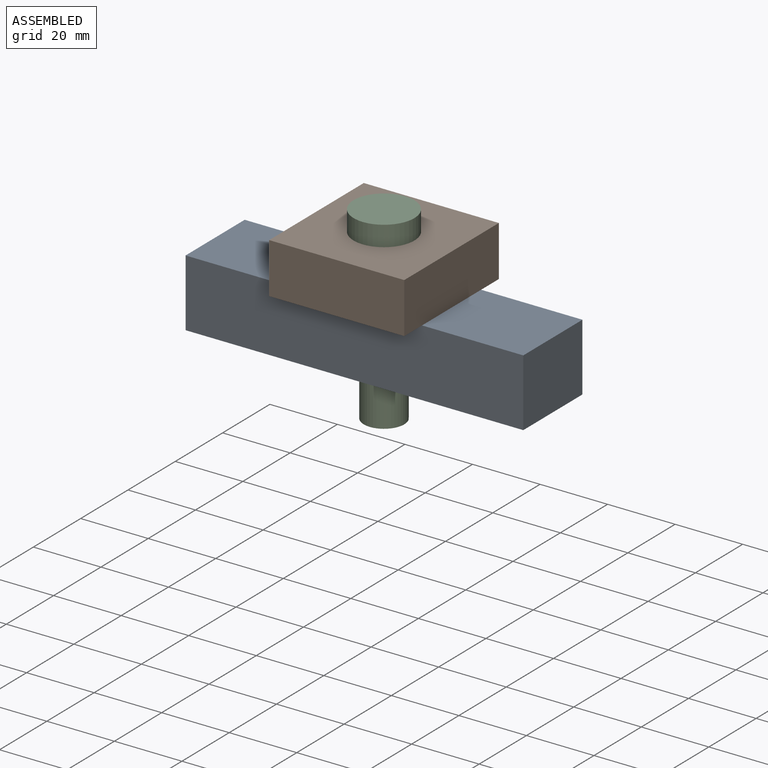
[diagram: assembled view]
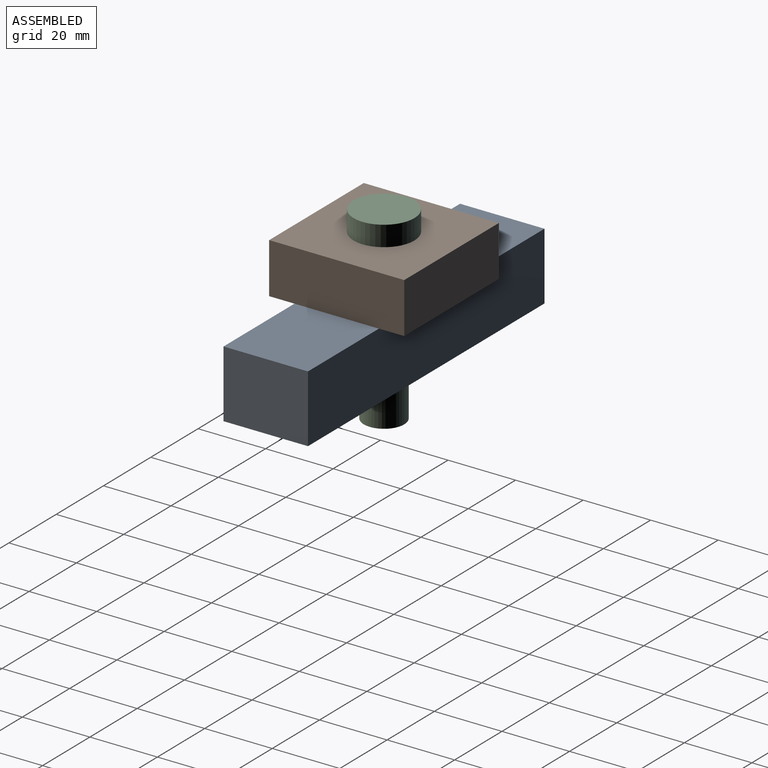
[diagram: assembled view, second angle]
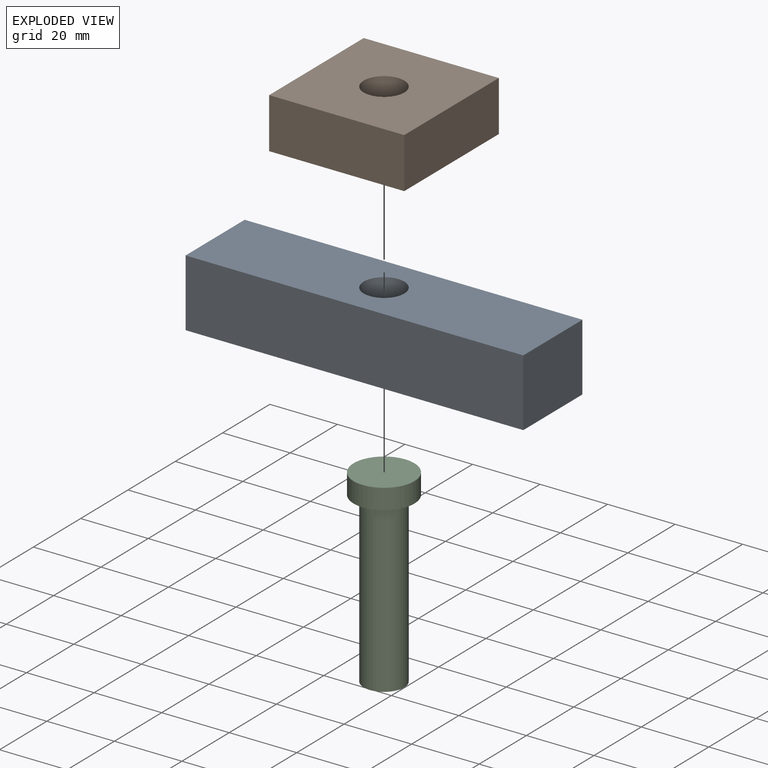
[diagram: exploded view]
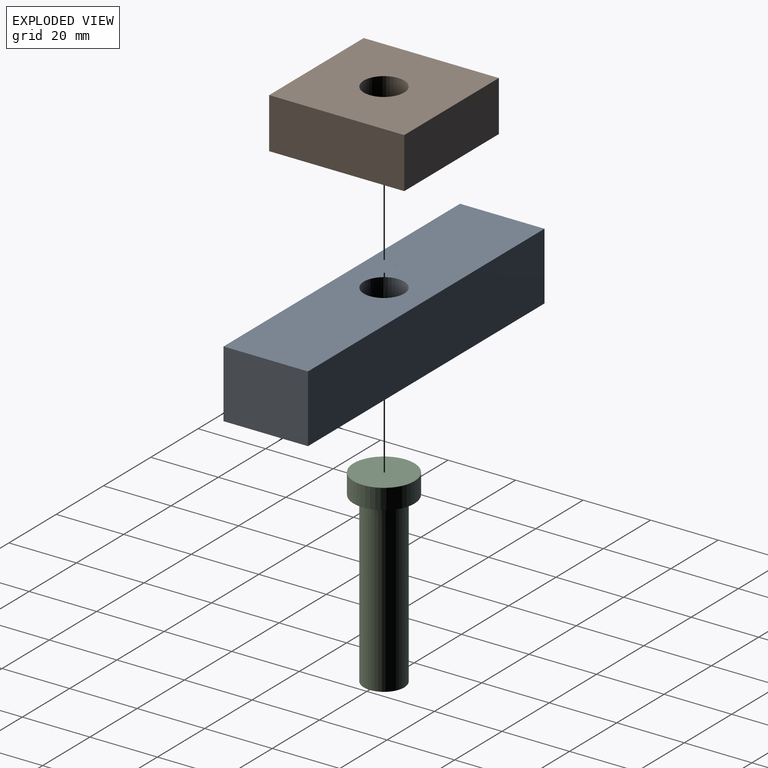
[diagram: exploded view, second angle]
ASSEMBLY  parts=3 mates=2
PART A: 7 faces, bbox 100x25x20 mm
  f0: plane 25x20mm, normal (1,0,0), area 500mm2, adj f1,f3,f4,f5
  f1: plane 100x20mm, normal (0,1,0), area 2000mm2, adj f0,f2,f4,f5
  f2: plane 25x20mm, normal (-1,0,0), area 500mm2, adj f1,f3,f4,f5
  f3: plane 100x20mm, normal (0,-1,0), area 2000mm2, adj f0,f2,f4,f5
  f4: plane 100x25mm, normal (0,0,1), area 2386.9mm2, adj f0,f1,f2,f3,f6
  f5: plane 100x25mm, normal (0,0,-1), area 2386.9mm2, adj f0,f1,f2,f3,f6
  f6: cylinder r=6mm len=20mm, axis (0,0,1), area 754mm2, adj f4,f5
PART B: 7 faces, bbox 40x40x15 mm
  f0: plane 40x15mm, normal (1,0,0), area 600mm2, adj f1,f3,f4,f5
  f1: plane 40x15mm, normal (0,1,0), area 600mm2, adj f0,f2,f4,f5
  f2: plane 40x15mm, normal (-1,0,0), area 600mm2, adj f1,f3,f4,f5
  f3: plane 40x15mm, normal (0,-1,0), area 600mm2, adj f0,f2,f4,f5
  f4: plane 40x40mm, normal (0,0,1), area 1486.9mm2, adj f0,f1,f2,f3,f6
  f5: plane 40x40mm, normal (0,0,-1), area 1486.9mm2, adj f0,f1,f2,f3,f6
  f6: cylinder r=6mm len=15mm, axis (0,0,1), area 565.5mm2, adj f4,f5
PART C: 5 faces, bbox 18x18x56 mm
  f0: cylinder r=6mm len=50mm, axis (0,0,-1), area 1885mm2, adj f1,f4
  f1: plane 12x12mm, normal (0,0,-1), area 113.1mm2, adj f0
  f2: cylinder r=9mm len=18mm, axis (0,0,-1), area 339.3mm2, adj f3,f4
  f3: plane 18x18mm, normal (0,0,1), area 254.5mm2, adj f2
  f4: plane 18x18mm, normal (0,0,-1), area 141.4mm2, adj f0,f2
PLACE A t=(-3.85,2.4,-3.07)mm fixed
PLACE B rot(axis=(0,0,1),90deg) t=(-3.85,2.4,16.93)mm
PLACE C rot(axis=(0,0,1),90deg) t=(-3.85,2.4,-18.07)mm
MATE fastened C.f0 <-> B.f6  axis (0,0,-1) through (-3.85,2.4,31.93)mm
MATE revolute A.f6 <-> B.f6  axis (0,0,1) through (-3.85,2.4,16.93)mm
